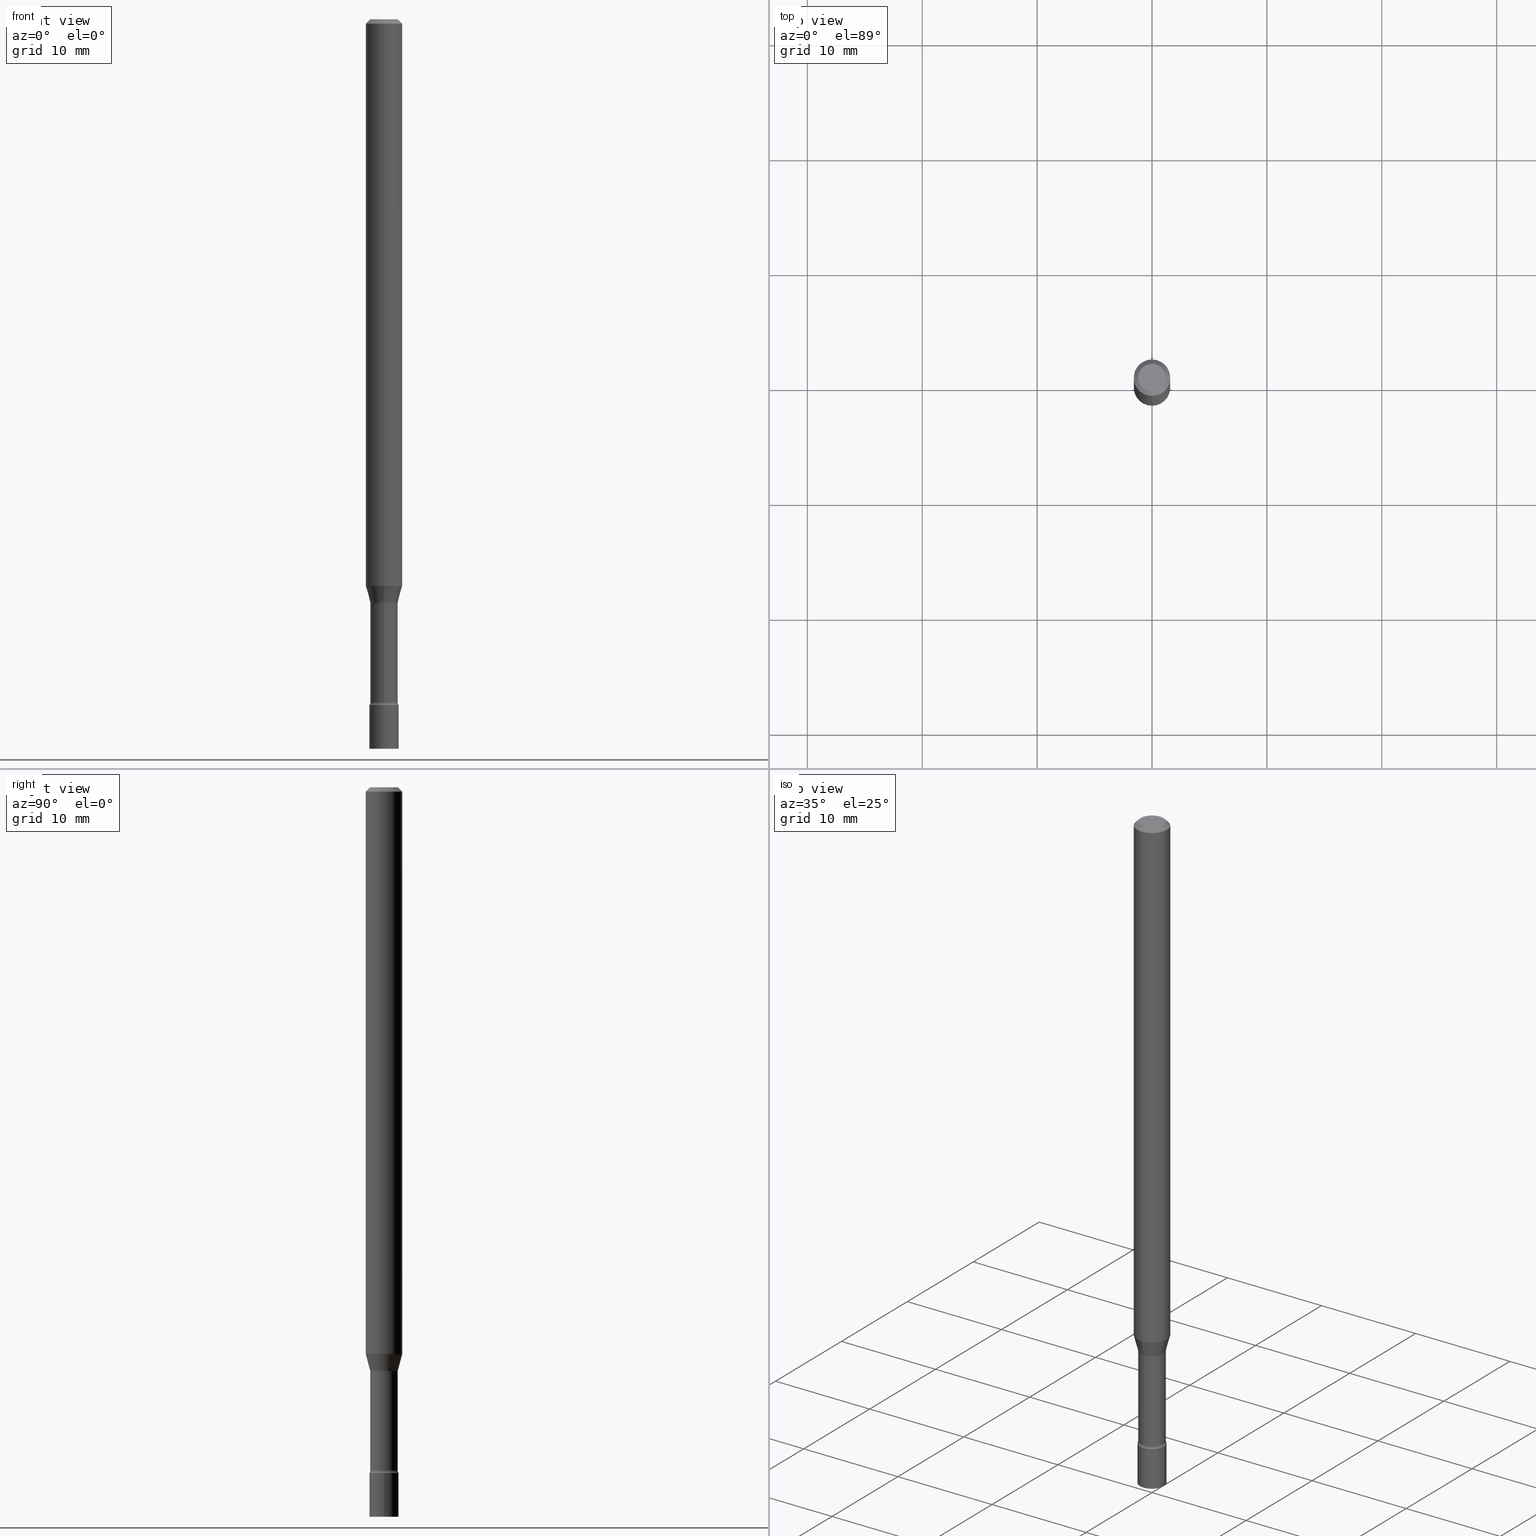
[diagram: canonical four-view strip — front | top / right | iso, engineering-drawing reading convention]
A machine part, canonical four-view strip (front | top / right | iso — engineering-drawing reading convention). The complete STEP part file that produces these views, byte-faithful:
ISO-10303-21;
HEADER;
FILE_DESCRIPTION (( 'STEP AP203' ),
    '1' );
FILE_NAME ('03558.STEP',
    '2024-03-08T21:48:51',
    ( '' ),
    ( '' ),
    'SwSTEP 2.0',
    'SolidWorks 2023',
    '' );
FILE_SCHEMA (( 'CONFIG_CONTROL_DESIGN' ));
ENDSEC;

DATA;
#1 = ORIENTED_EDGE ( 'NONE', *, *, #433, .F. ) ;
#2 = AXIS2_PLACEMENT_3D ( 'NONE', #275, #320, #165 ) ;
#3 = CIRCLE ( 'NONE', #193, 0.04700000000000000705 ) ;
#4 = VERTEX_POINT ( 'NONE', #35 ) ;
#5 = PERSON_AND_ORGANIZATION_ROLE ( 'classification_officer' ) ;
#6 = FACE_OUTER_BOUND ( 'NONE', #45, .T. ) ;
#7 = ORIENTED_EDGE ( 'NONE', *, *, #103, .T. ) ;
#8 = ORIENTED_EDGE ( 'NONE', *, *, #450, .T. ) ;
#9 = CALENDAR_DATE ( 2024, 8, 3 ) ;
#10 = LINE ( 'NONE', #492, #140 ) ;
#11 = EDGE_CURVE ( 'NONE', #172, #405, #64, .T. ) ;
#12 = EDGE_LOOP ( 'NONE', ( #369, #102, #20, #221 ) ) ;
#13 = ORIENTED_EDGE ( 'NONE', *, *, #80, .F. ) ;
#14 = DIRECTION ( 'NONE',  ( 0.000000000000000000, 0.000000000000000000, 1.000000000000000000 ) ) ;
#15 = AXIS2_PLACEMENT_3D ( 'NONE', #148, #146, #352 ) ;
#16 = DIRECTION ( 'NONE',  ( -2.445450007848855714E-29, 3.491508259130634782E-15, 1.000000000000000000 ) ) ;
#17 = DATE_TIME_ROLE ( 'classification_date' ) ;
#18 = DIRECTION ( 'NONE',  ( -2.445450007848855434E-29, 3.491508259130634782E-15, 1.000000000000000000 ) ) ;
#19 = FACE_OUTER_BOUND ( 'NONE', #88, .T. ) ;
#20 = ORIENTED_EDGE ( 'NONE', *, *, #195, .F. ) ;
#21 = DIRECTION ( 'NONE',  ( -6.982962677686266711E-15, -1.000000000000000000, 3.491508259130634782E-15 ) ) ;
#22 = CARTESIAN_POINT ( 'NONE',  ( 0.000000000000000000, 0.000000000000000000, 0.000000000000000000 ) ) ;
#23 = AXIS2_PLACEMENT_3D ( 'NONE', #496, #286, #410 ) ;
#24 = CIRCLE ( 'NONE', #418, 0.01500000000000002720 ) ;
#25 = CARTESIAN_POINT ( 'NONE',  ( 4.895729259716587129E-29, -6.989911505001192506E-15, -2.001974787463811190 ) ) ;
#26 = EDGE_LOOP ( 'NONE', ( #116, #189, #85, #476 ) ) ;
#27 = FACE_OUTER_BOUND ( 'NONE', #12, .T. ) ;
#28 = VERTEX_POINT ( 'NONE', #511 ) ;
#29 = DIRECTION ( 'NONE',  ( -2.445450007848855714E-29, 3.491508259130634782E-15, 1.000000000000000000 ) ) ;
#30 = AXIS2_PLACEMENT_3D ( 'NONE', #384, #178, #429 ) ;
#31 = AXIS2_PLACEMENT_3D ( 'NONE', #437, #360, #316 ) ;
#32 = DIRECTION ( 'NONE',  ( -2.445450007848855714E-29, 3.491508259130634782E-15, 1.000000000000000000 ) ) ;
#33 = DIRECTION ( 'NONE',  ( -6.982962677686263555E-15, -1.000000000000000000, 0.000000000000000000 ) ) ;
#34 = DIRECTION ( 'NONE',  ( -6.982962677686267499E-15, -1.000000000000000000, 5.812442539711189911E-15 ) ) ;
#35 = CARTESIAN_POINT ( 'NONE',  ( -3.773273898774340269E-16, -0.04749999999999999362, 1.369340100944918608E-16 ) ) ;
#36 = ORIENTED_EDGE ( 'NONE', *, *, #331, .T. ) ;
#37 = CARTESIAN_POINT ( 'NONE',  ( -3.281992458512547997E-16, -0.04700000000000003481, 1.641008881791399746E-16 ) ) ;
#38 = CARTESIAN_POINT ( 'NONE',  ( 4.440892098500625669E-16, 0.06250000000000000000, -2.182192661956646492E-16 ) ) ;
#39 = PLANE ( 'NONE',  #15 ) ;
#40 = VERTEX_POINT ( 'NONE', #272 ) ;
#41 = EDGE_CURVE ( 'NONE', #428, #398, #442, .T. ) ;
#42 = ORIENTED_EDGE ( 'NONE', *, *, #351, .F. ) ;
#43 = CALENDAR_DATE ( 2024, 8, 3 ) ;
#44 = EDGE_LOOP ( 'NONE', ( #467, #381, #84, #68 ) ) ;
#45 = EDGE_LOOP ( 'NONE', ( #318, #348, #120, #413 ) ) ;
#46 = CLOSED_SHELL ( 'NONE', ( #58, #393, #198, #119 ) ) ;
#47 = APPROVAL_PERSON_ORGANIZATION ( #371, #159, #374 ) ;
#48 = DATE_TIME_ROLE ( 'creation_date' ) ;
#49 = CARTESIAN_POINT ( 'NONE',  ( 3.316907271900976096E-16, 0.04749999999999999362, -1.803029584158117741E-16 ) ) ;
#50 = CARTESIAN_POINT ( 'NONE',  ( 0.000000000000000000, 0.000000000000000000, 0.000000000000000000 ) ) ;
#51 = CARTESIAN_POINT ( 'NONE',  ( 5.746851694535070554E-29, -8.204981146281391784E-15, -2.350000000000000089 ) ) ;
#52 = APPROVAL_STATUS ( 'not_yet_approved' ) ;
#53 = DIRECTION ( 'NONE',  ( -1.000000000000000000, 6.982962677686265922E-15, -4.883557194083112340E-29 ) ) ;
#54 = APPROVAL_DATE_TIME ( #323, #89 ) ;
#55 = AXIS2_PLACEMENT_3D ( 'NONE', #480, #105, #34 ) ;
#56 = CC_DESIGN_PERSON_AND_ORGANIZATION_ASSIGNMENT ( #205, #5, ( #516 ) ) ;
#57 = CARTESIAN_POINT ( 'NONE',  ( 3.668175011773291051E-31, -5.237262388695962379E-17, -0.01500000000000003067 ) ) ;
#58 = ADVANCED_FACE ( 'NONE', ( #520 ), #347, .T. ) ;
#59 = CARTESIAN_POINT ( 'NONE',  ( -4.287811248607203282E-16, -0.06250000000000005551, -0.01499999999999981209 ) ) ;
#60 = DIRECTION ( 'NONE',  ( 7.105427357601001859E-15, 1.000000000000000000, 0.000000000000000000 ) ) ;
#61 = FACE_OUTER_BOUND ( 'NONE', #373, .T. ) ;
#62 = VERTEX_POINT ( 'NONE', #368 ) ;
#63 = CARTESIAN_POINT ( 'NONE',  ( 5.746851694535070554E-29, -8.204981146281391784E-15, -2.350000000000000089 ) ) ;
#64 = CIRCLE ( 'NONE', #217, 0.01499999999999995087 ) ;
#65 = APPROVAL_PERSON_ORGANIZATION ( #117, #298, #131 ) ;
#66 = ORIENTED_EDGE ( 'NONE', *, *, #171, .T. ) ;
#67 = DIRECTION ( 'NONE',  ( -2.445450007848855714E-29, 3.491508259130634782E-15, 1.000000000000000000 ) ) ;
#68 = ORIENTED_EDGE ( 'NONE', *, *, #380, .F. ) ;
#69 = CARTESIAN_POINT ( 'NONE',  ( -4.364351673553912750E-16, -0.06250000000000005551, -0.01499999999999981209 ) ) ;
#70 = FACE_OUTER_BOUND ( 'NONE', #273, .T. ) ;
#71 = CIRCLE ( 'NONE', #473, 0.04749999999999999362 ) ;
#72 = CC_DESIGN_APPROVAL ( #159, ( #455 ) ) ;
#73 = CARTESIAN_POINT ( 'NONE',  ( -4.329436860164995557E-16, -0.06200000000000700090, -2.001974787463810745 ) ) ;
#74 = FACE_OUTER_BOUND ( 'NONE', #228, .T. ) ;
#75 = CARTESIAN_POINT ( 'NONE',  ( 6.113672015462842613E-29, -8.728703347107864943E-15, -2.500000000000000000 ) ) ;
#76 = CIRCLE ( 'NONE', #376, 0.06250000000000000000 ) ;
#77 = CARTESIAN_POINT ( 'NONE',  ( 3.375867592983955622E-16, 0.04751111260565701877, -1.998092501787273267 ) ) ;
#78 =( LENGTH_UNIT ( ) NAMED_UNIT ( * ) SI_UNIT ( $, .METRE. ) );
#79 = DIRECTION ( 'NONE',  ( -4.851104656540964275E-15, -0.7071067811865500152, -0.7071067811865450192 ) ) ;
#80 = EDGE_CURVE ( 'NONE', #28, #441, #464, .T. ) ;
#81 = CONICAL_SURFACE ( 'NONE', #134, 0.06250000000000000000, 0.7853981633974483900 ) ;
#82 = APPROVAL_ROLE ( '' ) ;
#83 = DIRECTION ( 'NONE',  ( -2.445450007848855714E-29, 3.491508259130634782E-15, 1.000000000000000000 ) ) ;
#84 = ORIENTED_EDGE ( 'NONE', *, *, #484, .T. ) ;
#85 = ORIENTED_EDGE ( 'NONE', *, *, #417, .F. ) ;
#86 = CARTESIAN_POINT ( 'NONE',  ( 3.668175011773291051E-31, -5.237262388695962379E-17, -0.01500000000000003067 ) ) ;
#87 = ORIENTED_EDGE ( 'NONE', *, *, #190, .T. ) ;
#88 = EDGE_LOOP ( 'NONE', ( #132, #182, #7, #139 ) ) ;
#89 = APPROVAL ( #52, 'UNSPECIFIED' ) ;
#90 = APPROVAL_STATUS ( 'not_yet_approved' ) ;
#91 = DIRECTION ( 'NONE',  ( 2.438088387897960049E-29, -3.491481338843145188E-15, -1.000000000000000000 ) ) ;
#92 =( NAMED_UNIT ( * ) SI_UNIT ( $, .STERADIAN. ) SOLID_ANGLE_UNIT ( ) );
#93 = CIRCLE ( 'NONE', #55, 0.04700000000000006950 ) ;
#94 = CARTESIAN_POINT ( 'NONE',  ( 7.070439667517895533E-46, -1.009486941691321215E-31, -2.891263221421328169E-17 ) ) ;
#95 = DIRECTION ( 'NONE',  ( -6.982962677686265922E-15, -1.000000000000000000, 3.491508259130634388E-15 ) ) ;
#96 = CARTESIAN_POINT ( 'NONE',  ( 0.000000000000000000, 0.000000000000000000, 0.000000000000000000 ) ) ;
#97 = ORIENTED_EDGE ( 'NONE', *, *, #433, .T. ) ;
#98 = DIRECTION ( 'NONE',  ( -2.445450007848855714E-29, 3.491508259130634782E-15, 1.000000000000000000 ) ) ;
#99 = AXIS2_PLACEMENT_3D ( 'NONE', #297, #67, #215 ) ;
#100 = ORIENTED_EDGE ( 'NONE', *, *, #11, .F. ) ;
#101 = DIRECTION ( 'NONE',  ( 1.000000000000000000, -7.105427357601001070E-15, 4.926315838220521191E-29 ) ) ;
#102 = ORIENTED_EDGE ( 'NONE', *, *, #41, .T. ) ;
#103 = EDGE_CURVE ( 'NONE', #40, #497, #10, .T. ) ;
#104 = DIRECTION ( 'NONE',  ( -6.982962677686265922E-15, -1.000000000000000000, 3.491508259130634782E-15 ) ) ;
#105 = DIRECTION ( 'NONE',  ( -2.445450007848855714E-29, 3.491508259130634782E-15, 1.000000000000000000 ) ) ;
#106 = AXIS2_PLACEMENT_3D ( 'NONE', #122, #91, #375 ) ;
#107 = PRODUCT_DEFINITION_FORMATION_WITH_SPECIFIED_SOURCE ( 'ANY', '', #421, .NOT_KNOWN. ) ;
#108 = CARTESIAN_POINT ( 'NONE',  ( 3.339550858072472854E-16, 0.04700000000000003481, -1.641008881791399746E-16 ) ) ;
#109 = LINE ( 'NONE', #108, #500 ) ;
#110 = ORIENTED_EDGE ( 'NONE', *, *, #267, .F. ) ;
#111 = DIRECTION ( 'NONE',  ( 1.839019923739596765E-15, 0.2588190451025244587, 0.9659258262890673130 ) ) ;
#112 = CIRCLE ( 'NONE', #481, 0.04751111260566399236 ) ;
#113 = ORIENTED_EDGE ( 'NONE', *, *, #450, .F. ) ;
#114 = CIRCLE ( 'NONE', #448, 0.04700000000000000705 ) ;
#115 = DIRECTION ( 'NONE',  ( 1.000000000000000000, -7.105427357601001070E-15, 4.926315838220521191E-29 ) ) ;
#116 = ORIENTED_EDGE ( 'NONE', *, *, #404, .T. ) ;
#117 = PERSON_AND_ORGANIZATION ( #424, #204 ) ;
#118 = DIRECTION ( 'NONE',  ( 2.445450007848855714E-29, -3.491508259130634782E-15, -1.000000000000000000 ) ) ;
#119 = ADVANCED_FACE ( 'NONE', ( #454 ), #282, .T. ) ;
#120 = ORIENTED_EDGE ( 'NONE', *, *, #390, .T. ) ;
#121 = ORIENTED_EDGE ( 'NONE', *, *, #338, .T. ) ;
#122 = CARTESIAN_POINT ( 'NONE',  ( 3.491481338843744722E-16, 0.04999999999999128059, -2.500000000000000000 ) ) ;
#123 = AXIS2_PLACEMENT_3D ( 'NONE', #460, #170, #468 ) ;
#124 = CC_DESIGN_SECURITY_CLASSIFICATION ( #516, ( #107 ) ) ;
#125 = PERSON_AND_ORGANIZATION_ROLE ( 'creator' ) ;
#126 = LINE ( 'NONE', #59, #279 ) ;
#127 = ORIENTED_EDGE ( 'NONE', *, *, #459, .F. ) ;
#128 = ORIENTED_EDGE ( 'NONE', *, *, #171, .F. ) ;
#129 = COORDINATED_UNIVERSAL_TIME_OFFSET ( 5, 0, .BEHIND. ) ;
#130 = DIRECTION ( 'NONE',  ( -2.445468806185136597E-29, 3.491481338843145583E-15, 1.000000000000000000 ) ) ;
#131 = APPROVAL_ROLE ( '' ) ;
#132 = ORIENTED_EDGE ( 'NONE', *, *, #180, .F. ) ;
#133 = DIRECTION ( 'NONE',  ( -2.445468806185136597E-29, 3.491481338843145583E-15, 1.000000000000000000 ) ) ;
#134 = AXIS2_PLACEMENT_3D ( 'NONE', #86, #118, #244 ) ;
#135 = VECTOR ( 'NONE', #458, 39.37007874015748854 ) ;
#136 = FACE_OUTER_BOUND ( 'NONE', #326, .T. ) ;
#137 = CARTESIAN_POINT ( 'NONE',  ( 5.724842475279405733E-29, -8.173557814231804720E-15, -2.341000000000000192 ) ) ;
#138 = DIRECTION ( 'NONE',  ( 7.105427357600997914E-15, 1.000000000000000000, 0.000000000000000000 ) ) ;
#139 = ORIENTED_EDGE ( 'NONE', *, *, #223, .F. ) ;
#140 = VECTOR ( 'NONE', #415, 39.37007874015748143 ) ;
#141 = DIRECTION ( 'NONE',  ( -6.982962677686266711E-15, -1.000000000000000000, 3.491508259130634782E-15 ) ) ;
#142 = VECTOR ( 'NONE', #151, 39.37007874015748143 ) ;
#143 = ADVANCED_FACE ( 'NONE', ( #199 ), #385, .T. ) ;
#144 = LINE ( 'NONE', #420, #135 ) ;
#145 = CARTESIAN_POINT ( 'NONE',  ( 5.746851694535070554E-29, -8.204981146281391784E-15, -2.350000000000000089 ) ) ;
#146 = DIRECTION ( 'NONE',  ( -2.445450007848855434E-29, 3.491508259130634782E-15, 1.000000000000000000 ) ) ;
#147 = AXIS2_PLACEMENT_3D ( 'NONE', #137, #253, #387 ) ;
#148 = CARTESIAN_POINT ( 'NONE',  ( 3.491481338843707252E-16, 0.04999999999999180100, -2.350000000000000533 ) ) ;
#149 = MANIFOLD_SOLID_BREP ( 'Body-Move/Copy2[1]', #46 ) ;
#150 = DIRECTION ( 'NONE',  ( -2.445450007848855434E-29, 3.491508259130634782E-15, 1.000000000000000000 ) ) ;
#151 = DIRECTION ( 'NONE',  ( 4.937700262164548042E-15, 0.7071067811865451302, -0.7071067811865499042 ) ) ;
#152 = AXIS2_PLACEMENT_3D ( 'NONE', #344, #470, #104 ) ;
#153 = CONICAL_SURFACE ( 'NONE', #249, 0.04751111260566399236, 0.2617993877991497409 ) ;
#154 = ADVANCED_FACE ( 'NONE', ( #250 ), #166, .F. ) ;
#155 = PERSON_AND_ORGANIZATION ( #424, #204 ) ;
#156 = CALENDAR_DATE ( 2024, 8, 3 ) ;
#157 = CYLINDRICAL_SURFACE ( 'NONE', #362, 0.06250000000000000000 ) ;
#158 = DATE_AND_TIME ( #485, #212 ) ;
#159 = APPROVAL ( #90, 'UNSPECIFIED' ) ;
#160 = DIRECTION ( 'NONE',  ( 6.982962677686265922E-15, 1.000000000000000000, -3.483106191921935554E-15 ) ) ;
#161 = AXIS2_PLACEMENT_3D ( 'NONE', #276, #83, #444 ) ;
#162 = CIRCLE ( 'NONE', #435, 0.05000000000000000278 ) ;
#163 = LENGTH_MEASURE_WITH_UNIT ( LENGTH_MEASURE( 0.02539999999999999897 ), #78 );
#164 = DIRECTION ( 'NONE',  ( -2.445468806185136877E-29, 3.491481338843145188E-15, 1.000000000000000000 ) ) ;
#165 = DIRECTION ( 'NONE',  ( 1.000000000000000000, -6.982962677686267499E-15, 4.876176775795936353E-29 ) ) ;
#166 = PLANE ( 'NONE',  #425 ) ;
#167 = AXIS2_PLACEMENT_3D ( 'NONE', #181, #264, #260 ) ;
#168 = ADVANCED_FACE ( 'NONE', ( #452 ), #81, .T. ) ;
#169 = CARTESIAN_POINT ( 'NONE',  ( 4.886235324178426832E-29, -6.976356472497257003E-15, -1.998092501787273045 ) ) ;
#170 = DIRECTION ( 'NONE',  ( -2.445450007848855714E-29, 3.491508259130634782E-15, 1.000000000000000000 ) ) ;
#171 = EDGE_CURVE ( 'NONE', #441, #405, #292, .T. ) ;
#172 = VERTEX_POINT ( 'NONE', #196 ) ;
#173 = ORIENTED_EDGE ( 'NONE', *, *, #180, .T. ) ;
#174 = CARTESIAN_POINT ( 'NONE',  ( 3.908379845742528783E-16, 0.04751111260565701877, -1.998092501787273267 ) ) ;
#175 = ADVANCED_FACE ( 'NONE', ( #6 ), #157, .T. ) ;
#176 = EDGE_LOOP ( 'NONE', ( #300, #127 ) ) ;
#177 = AXIS2_PLACEMENT_3D ( 'NONE', #57, #278, #160 ) ;
#178 = DIRECTION ( 'NONE',  ( -2.445450007848855714E-29, 3.491508259130634782E-15, 1.000000000000000000 ) ) ;
#179 = AXIS2_PLACEMENT_3D ( 'NONE', #75, #357, #483 ) ;
#180 = EDGE_CURVE ( 'NONE', #287, #364, #412, .T. ) ;
#181 = CARTESIAN_POINT ( 'NONE',  ( 5.724842475279405733E-29, -8.173557814231804720E-15, -2.341000000000000192 ) ) ;
#182 = ORIENTED_EDGE ( 'NONE', *, *, #459, .T. ) ;
#183 = CARTESIAN_POINT ( 'NONE',  ( 6.113672015462842613E-29, -8.728703347107864943E-15, -2.500000000000000000 ) ) ;
#184 = DESIGN_CONTEXT ( 'detailed design', #263, 'design' ) ;
#185 = CARTESIAN_POINT ( 'NONE',  ( 4.440892098501102436E-16, 0.06249999999999325540, -1.942153212482682800 ) ) ;
#186 = CIRCLE ( 'NONE', #270, 0.04700000000000006950 ) ;
#187 = LINE ( 'NONE', #519, #142 ) ;
#188 = DIRECTION ( 'NONE',  ( -2.445450007848855434E-29, 3.491508259130634782E-15, 1.000000000000000000 ) ) ;
#189 = ORIENTED_EDGE ( 'NONE', *, *, #509, .T. ) ;
#190 = EDGE_CURVE ( 'NONE', #214, #4, #71, .T. ) ;
#191 = APPROVAL_STATUS ( 'not_yet_approved' ) ;
#192 = CIRCLE ( 'NONE', #123, 0.04751111260566399236 ) ;
#193 = AXIS2_PLACEMENT_3D ( 'NONE', #268, #314, #512 ) ;
#194 = ORIENTED_EDGE ( 'NONE', *, *, #80, .T. ) ;
#195 = EDGE_CURVE ( 'NONE', #254, #398, #211, .T. ) ;
#196 = CARTESIAN_POINT ( 'NONE',  ( 3.446132268437060393E-16, 0.04699999999999190242, -2.341000000000000636 ) ) ;
#197 = PRODUCT_RELATED_PRODUCT_CATEGORY ( 'detail', '', ( #421 ) ) ;
#198 = ADVANCED_FACE ( 'NONE', ( #19 ), #330, .T. ) ;
#199 = FACE_OUTER_BOUND ( 'NONE', #426, .T. ) ;
#200 = CALENDAR_DATE ( 2024, 8, 3 ) ;
#201 = CARTESIAN_POINT ( 'NONE',  ( -0.05000000000000000278, 3.552713678800501127E-16, -2.459467545127453311E-30 ) ) ;
#202 = EDGE_LOOP ( 'NONE', ( #121, #97, #296, #42 ) ) ;
#203 = CIRCLE ( 'NONE', #506, 0.04749999999999999362 ) ;
#204 = ORGANIZATION ( 'UNSPECIFIED', 'UNSPECIFIED', '' ) ;
#205 = PERSON_AND_ORGANIZATION ( #424, #204 ) ;
#206 = DIRECTION ( 'NONE',  ( 6.982962677686265922E-15, 1.000000000000000000, -3.491508259130634782E-15 ) ) ;
#207 = CC_DESIGN_PERSON_AND_ORGANIZATION_ASSIGNMENT ( #235, #246, ( #421 ) ) ;
#208 = DIRECTION ( 'NONE',  ( -6.982962677686265133E-15, -1.000000000000000000, 5.463695987328526437E-15 ) ) ;
#209 = EDGE_CURVE ( 'NONE', #405, #441, #514, .T. ) ;
#210 = DIRECTION ( 'NONE',  ( -6.982962677686265922E-15, -1.000000000000000000, 3.483106191921935554E-15 ) ) ;
#211 = CIRCLE ( 'NONE', #161, 0.06250000000000000000 ) ;
#212 = LOCAL_TIME ( 16, 48, 51.00000000000000000, #406 ) ;
#213 = CARTESIAN_POINT ( 'NONE',  ( -0.05000000000000000278, -8.111570878814577955E-15, -2.500000000000000000 ) ) ;
#214 = VERTEX_POINT ( 'NONE', #241 ) ;
#215 = DIRECTION ( 'NONE',  ( -6.982962677686267499E-15, -1.000000000000000000, 3.491508259130635176E-15 ) ) ;
#216 = DIRECTION ( 'NONE',  ( -2.445450007848855714E-29, 3.491508259130634782E-15, 1.000000000000000000 ) ) ;
#217 = AXIS2_PLACEMENT_3D ( 'NONE', #321, #115, #60 ) ;
#218 = AXIS2_PLACEMENT_3D ( 'NONE', #50, #14, #329 ) ;
#219 = FACE_OUTER_BOUND ( 'NONE', #359, .T. ) ;
#220 = CARTESIAN_POINT ( 'NONE',  ( 4.440892098501103423E-16, 0.06249999999999993755, -0.01500000000000024751 ) ) ;
#221 = ORIENTED_EDGE ( 'NONE', *, *, #390, .F. ) ;
#222 = EDGE_LOOP ( 'NONE', ( #358, #388, #8, #315 ) ) ;
#223 = EDGE_CURVE ( 'NONE', #364, #497, #434, .T. ) ;
#224 = DIRECTION ( 'NONE',  ( 1.000000000000000000, -6.982962677686265922E-15, 4.876176775795935793E-29 ) ) ;
#225 = VECTOR ( 'NONE', #164, 39.37007874015748143 ) ;
#226 = AXIS2_PLACEMENT_3D ( 'NONE', #299, #342, #501 ) ;
#227 = ORIENTED_EDGE ( 'NONE', *, *, #513, .F. ) ;
#228 = EDGE_LOOP ( 'NONE', ( #100, #377, #194, #66 ) ) ;
#229 = VERTEX_POINT ( 'NONE', #291 ) ;
#230 = CC_DESIGN_PERSON_AND_ORGANIZATION_ASSIGNMENT ( #155, #125, ( #107 ) ) ;
#231 = DIRECTION ( 'NONE',  ( -2.438088387897960049E-29, 3.491481338843145188E-15, 1.000000000000000000 ) ) ;
#232 = EDGE_CURVE ( 'NONE', #4, #254, #126, .T. ) ;
#233 = ORIENTED_EDGE ( 'NONE', *, *, #351, .T. ) ;
#234 = LINE ( 'NONE', #37, #457 ) ;
#235 = PERSON_AND_ORGANIZATION ( #424, #204 ) ;
#236 = DIRECTION ( 'NONE',  ( 1.000000000000000000, -6.982962677686274599E-15, 0.000000000000000000 ) ) ;
#237 = AXIS2_PLACEMENT_3D ( 'NONE', #335, #130, #494 ) ;
#238 = LOCAL_TIME ( 16, 48, 51.00000000000000000, #414 ) ;
#239 = EDGE_CURVE ( 'NONE', #428, #62, #255, .T. ) ;
#240 =( NAMED_UNIT ( * ) PLANE_ANGLE_UNIT ( ) SI_UNIT ( $, .RADIAN. ) );
#241 = CARTESIAN_POINT ( 'NONE',  ( 3.840629472727447874E-16, 0.04749999999999999362, -1.947592745229184119E-16 ) ) ;
#242 = ORIENTED_EDGE ( 'NONE', *, *, #295, .T. ) ;
#243 = APPROVAL_DATE_TIME ( #158, #159 ) ;
#244 = DIRECTION ( 'NONE',  ( 6.982962677686265922E-15, 1.000000000000000000, -3.483106191921935554E-15 ) ) ;
#245 = ORIENTED_EDGE ( 'NONE', *, *, #341, .T. ) ;
#246 = PERSON_AND_ORGANIZATION_ROLE ( 'design_owner' ) ;
#247 = DIRECTION ( 'NONE',  ( -6.982962677686266711E-15, -1.000000000000000000, 0.000000000000000000 ) ) ;
#248 = VECTOR ( 'NONE', #18, 39.37007874015748143 ) ;
#249 = AXIS2_PLACEMENT_3D ( 'NONE', #401, #308, #311 ) ;
#250 = FACE_OUTER_BOUND ( 'NONE', #515, .T. ) ;
#251 = DIRECTION ( 'NONE',  ( -2.445450007848855714E-29, 3.491508259130634782E-15, 1.000000000000000000 ) ) ;
#252 = ORIENTED_EDGE ( 'NONE', *, *, #262, .T. ) ;
#253 = DIRECTION ( 'NONE',  ( -2.445450007848855714E-29, 3.491508259130634782E-15, 1.000000000000000000 ) ) ;
#254 = VERTEX_POINT ( 'NONE', #69 ) ;
#255 = CIRCLE ( 'NONE', #353, 0.06250000000000000000 ) ;
#256 = DIRECTION ( 'NONE',  ( -6.982962677686265922E-15, -1.000000000000000000, 5.812442539711197800E-15 ) ) ;
#257 = ORIENTED_EDGE ( 'NONE', *, *, #295, .F. ) ;
#258 = CARTESIAN_POINT ( 'NONE',  ( 3.668175011773291051E-31, -5.237262388695962379E-17, -0.01500000000000003067 ) ) ;
#259 = CLOSED_SHELL ( 'NONE', ( #283, #284, #367, #168, #332, #478, #356, #175, #143, #154, #469, #430, #289, #402 ) ) ;
#260 = DIRECTION ( 'NONE',  ( -6.982962677686265922E-15, -1.000000000000000000, 3.491508259130634782E-15 ) ) ;
#261 = CIRCLE ( 'NONE', #179, 0.05000000000000000278 ) ;
#262 = EDGE_CURVE ( 'NONE', #302, #229, #192, .T. ) ;
#263 = APPLICATION_CONTEXT ( 'configuration controlled 3d designs of mechanical parts and assemblies' ) ;
#264 = DIRECTION ( 'NONE',  ( -2.445450007848855714E-29, 3.491508259130634782E-15, 1.000000000000000000 ) ) ;
#265 = LINE ( 'NONE', #440, #482 ) ;
#266 = CC_DESIGN_DATE_AND_TIME_ASSIGNMENT ( #493, #48, ( #455 ) ) ;
#267 = EDGE_CURVE ( 'NONE', #172, #28, #186, .T. ) ;
#268 = CARTESIAN_POINT ( 'NONE',  ( 4.895729259716587129E-29, -6.989911505001192506E-15, -2.001974787463811190 ) ) ;
#269 = EDGE_CURVE ( 'NONE', #62, #428, #327, .T. ) ;
#270 = AXIS2_PLACEMENT_3D ( 'NONE', #303, #216, #423 ) ;
#271 = TOROIDAL_SURFACE ( 'NONE', #147, 0.06200000000000003425, 0.01499999999999995608 ) ;
#272 = CARTESIAN_POINT ( 'NONE',  ( 0.05000000000000000278, -9.077851480992178278E-15, -2.500000000000000000 ) ) ;
#273 = EDGE_LOOP ( 'NONE', ( #110, #313, #312, #13 ) ) ;
#274 = VERTEX_POINT ( 'NONE', #395 ) ;
#275 = CARTESIAN_POINT ( 'NONE',  ( 0.000000000000000000, 0.000000000000000000, 0.000000000000000000 ) ) ;
#276 = CARTESIAN_POINT ( 'NONE',  ( 3.668175011773291051E-31, -5.237262388695962379E-17, -0.01500000000000003067 ) ) ;
#277 = APPLICATION_PROTOCOL_DEFINITION ( 'international standard', 'config_control_design', 1994, #471 ) ;
#278 = DIRECTION ( 'NONE',  ( 2.445450007848855714E-29, -3.491508259130634782E-15, -1.000000000000000000 ) ) ;
#279 = VECTOR ( 'NONE', #79, 39.37007874015748143 ) ;
#280 = LOCAL_TIME ( 16, 48, 51.00000000000000000, #378 ) ;
#281 = SECURITY_CLASSIFICATION_LEVEL ( 'unclassified' ) ;
#282 = PLANE ( 'NONE',  #106 ) ;
#283 = ADVANCED_FACE ( 'NONE', ( #136 ), #317, .F. ) ;
#284 = ADVANCED_FACE ( 'NONE', ( #427 ), #392, .T. ) ;
#285 = PERSON_AND_ORGANIZATION ( #424, #204 ) ;
#286 = DIRECTION ( 'NONE',  ( -2.445450007848855714E-29, 3.491508259130634782E-15, 1.000000000000000000 ) ) ;
#287 = VERTEX_POINT ( 'NONE', #213 ) ;
#288 = PRODUCT_DEFINITION_SHAPE ( 'NONE', 'NONE',  #455 ) ;
#289 = ADVANCED_FACE ( 'NONE', ( #498 ), #389, .T. ) ;
#290 = PERSON_AND_ORGANIZATION ( #424, #204 ) ;
#291 = CARTESIAN_POINT ( 'NONE',  ( -3.317683261006522330E-16, -0.04751111260567096595, -1.998092501787272823 ) ) ;
#292 = CIRCLE ( 'NONE', #407, 0.05000000000000000278 ) ;
#293 = VECTOR ( 'NONE', #111, 39.37007874015748143 ) ;
#294 = DIRECTION ( 'NONE',  ( -2.445468806185136597E-29, 3.491481338843145583E-15, 1.000000000000000000 ) ) ;
#295 = EDGE_CURVE ( 'NONE', #497, #364, #301, .T. ) ;
#296 = ORIENTED_EDGE ( 'NONE', *, *, #269, .F. ) ;
#297 = CARTESIAN_POINT ( 'NONE',  ( 0.000000000000000000, 0.000000000000000000, 0.000000000000000000 ) ) ;
#298 = APPROVAL ( #191, 'UNSPECIFIED' ) ;
#299 = CARTESIAN_POINT ( 'NONE',  ( 4.886235324178426832E-29, -6.976356472497257003E-15, -1.998092501787273045 ) ) ;
#300 = ORIENTED_EDGE ( 'NONE', *, *, #453, .F. ) ;
#301 = CIRCLE ( 'NONE', #439, 0.05000000000000000278 ) ;
#302 = VERTEX_POINT ( 'NONE', #174 ) ;
#303 = CARTESIAN_POINT ( 'NONE',  ( 5.724798468374171702E-29, -8.173620834624816498E-15, -2.341000000000000192 ) ) ;
#304 = ORIENTED_EDGE ( 'NONE', *, *, #453, .T. ) ;
#305 = DIRECTION ( 'NONE',  ( 1.000000000000000000, -6.982962677686274599E-15, 0.000000000000000000 ) ) ;
#306 = ORIENTED_EDGE ( 'NONE', *, *, #325, .T. ) ;
#307 = FACE_OUTER_BOUND ( 'NONE', #222, .T. ) ;
#308 = DIRECTION ( 'NONE',  ( -2.445450007848855714E-29, 3.491508259130634782E-15, 1.000000000000000000 ) ) ;
#309 = AXIS2_PLACEMENT_3D ( 'NONE', #508, #101, #138 ) ;
#310 = ORIENTED_EDGE ( 'NONE', *, *, #209, .F. ) ;
#311 = DIRECTION ( 'NONE',  ( -6.982962677686265922E-15, -1.000000000000000000, 5.749913744050246675E-15 ) ) ;
#312 = ORIENTED_EDGE ( 'NONE', *, *, #209, .T. ) ;
#313 = ORIENTED_EDGE ( 'NONE', *, *, #11, .T. ) ;
#314 = DIRECTION ( 'NONE',  ( -2.445450007848855714E-29, 3.491508259130634782E-15, 1.000000000000000000 ) ) ;
#315 = ORIENTED_EDGE ( 'NONE', *, *, #417, .T. ) ;
#316 = DIRECTION ( 'NONE',  ( -6.982962677686265922E-15, -1.000000000000000000, 3.491508259130634782E-15 ) ) ;
#317 = TOROIDAL_SURFACE ( 'NONE', #152, 0.06200000000000000649, 0.01500000000000002373 ) ;
#318 = ORIENTED_EDGE ( 'NONE', *, *, #41, .F. ) ;
#319 = DATE_AND_TIME ( #156, #465 ) ;
#320 = DIRECTION ( 'NONE',  ( -2.445468806185136597E-29, 3.491481338843145583E-15, 1.000000000000000000 ) ) ;
#321 = CARTESIAN_POINT ( 'NONE',  ( 4.405364961713195510E-16, 0.06199999999999186023, -2.341000000000000636 ) ) ;
#322 = ADVANCED_BREP_SHAPE_REPRESENTATION ( '03558', ( #149, #337, #218 ), #386 ) ;
#323 = DATE_AND_TIME ( #200, #238 ) ;
#324 = CARTESIAN_POINT ( 'NONE',  ( -4.329436860164914206E-16, -0.06200000000000820133, -2.341000000000000192 ) ) ;
#325 = EDGE_CURVE ( 'NONE', #398, #254, #76, .T. ) ;
#326 = EDGE_LOOP ( 'NONE', ( #502, #245, #383, #113 ) ) ;
#327 = CIRCLE ( 'NONE', #30, 0.06250000000000000000 ) ;
#328 = CC_DESIGN_APPROVAL ( #298, ( #516 ) ) ;
#329 = DIRECTION ( 'NONE',  ( 1.000000000000000000, 0.000000000000000000, 0.000000000000000000 ) ) ;
#330 = CYLINDRICAL_SURFACE ( 'NONE', #237, 0.05000000000000000278 ) ;
#331 = EDGE_CURVE ( 'NONE', #4, #214, #203, .T. ) ;
#332 = ADVANCED_FACE ( 'NONE', ( #27 ), #346, .T. ) ;
#333 = PERSON_AND_ORGANIZATION_ROLE ( 'design_supplier' ) ;
#334 = ORIENTED_EDGE ( 'NONE', *, *, #190, .F. ) ;
#335 = CARTESIAN_POINT ( 'NONE',  ( 0.000000000000000000, 0.000000000000000000, 0.000000000000000000 ) ) ;
#336 = EDGE_LOOP ( 'NONE', ( #461, #422, #479, #227 ) ) ;
#337 = MANIFOLD_SOLID_BREP ( 'Body-Move/Copy2[2]', #259 ) ;
#338 = EDGE_CURVE ( 'NONE', #229, #302, #112, .T. ) ;
#339 = DIRECTION ( 'NONE',  ( -2.445450007848855714E-29, 3.491508259130634782E-15, 1.000000000000000000 ) ) ;
#340 = LOCAL_TIME ( 16, 48, 51.00000000000000000, #129 ) ;
#341 = EDGE_CURVE ( 'NONE', #302, #274, #408, .T. ) ;
#342 = DIRECTION ( 'NONE',  ( -2.445450007848855714E-29, 3.491508259130634782E-15, 1.000000000000000000 ) ) ;
#343 = ORIENTED_EDGE ( 'NONE', *, *, #513, .T. ) ;
#344 = CARTESIAN_POINT ( 'NONE',  ( 4.895766893511868006E-29, -6.989857611264368100E-15, -2.001974787463811190 ) ) ;
#345 = SHAPE_DEFINITION_REPRESENTATION ( #288, #322 ) ;
#346 = CYLINDRICAL_SURFACE ( 'NONE', #416, 0.06250000000000000000 ) ;
#347 = CYLINDRICAL_SURFACE ( 'NONE', #2, 0.05000000000000000278 ) ;
#348 = ORIENTED_EDGE ( 'NONE', *, *, #239, .T. ) ;
#349 = CONICAL_SURFACE ( 'NONE', #226, 0.04751111260566399236, 0.2617993877991497409 ) ;
#350 = CARTESIAN_POINT ( 'NONE',  ( 7.070439667517895533E-46, -1.009486941691321215E-31, -2.891263221421328169E-17 ) ) ;
#351 = EDGE_CURVE ( 'NONE', #229, #62, #144, .T. ) ;
#352 = DIRECTION ( 'NONE',  ( -6.982962677686265922E-15, -1.000000000000000000, 3.491508259130634782E-15 ) ) ;
#353 = AXIS2_PLACEMENT_3D ( 'NONE', #456, #409, #372 ) ;
#354 = CARTESIAN_POINT ( 'NONE',  ( 3.552713678801073051E-16, 0.04999999999999177325, -2.350000000000000533 ) ) ;
#355 = CC_DESIGN_APPROVAL ( #89, ( #107 ) ) ;
#356 = ADVANCED_FACE ( 'NONE', ( #61 ), #349, .T. ) ;
#357 = DIRECTION ( 'NONE',  ( -2.445468806185136597E-29, 3.491481338843145583E-15, 1.000000000000000000 ) ) ;
#358 = ORIENTED_EDGE ( 'NONE', *, *, #341, .F. ) ;
#359 = EDGE_LOOP ( 'NONE', ( #242, #431 ) ) ;
#360 = DIRECTION ( 'NONE',  ( -2.445450007848855714E-29, 3.491508259130634782E-15, 1.000000000000000000 ) ) ;
#361 = COORDINATED_UNIVERSAL_TIME_OFFSET ( 5, 0, .BEHIND. ) ;
#362 = AXIS2_PLACEMENT_3D ( 'NONE', #382, #16, #449 ) ;
#363 = TOROIDAL_SURFACE ( 'NONE', #167, 0.06200000000000003425, 0.01499999999999995608 ) ;
#364 = VERTEX_POINT ( 'NONE', #432 ) ;
#365 = DIMENSIONAL_EXPONENTS ( 1.000000000000000000, 0.000000000000000000, 0.000000000000000000, 0.000000000000000000, 0.000000000000000000, 0.000000000000000000, 0.000000000000000000 ) ;
#366 = DATE_AND_TIME ( #43, #280 ) ;
#367 = ADVANCED_FACE ( 'NONE', ( #70 ), #271, .F. ) ;
#368 = CARTESIAN_POINT ( 'NONE',  ( -4.364351673553439433E-16, -0.06250000000000675848, -1.942153212482682134 ) ) ;
#369 = ORIENTED_EDGE ( 'NONE', *, *, #269, .T. ) ;
#370 = EDGE_LOOP ( 'NONE', ( #304, #173, #257, #487 ) ) ;
#371 = PERSON_AND_ORGANIZATION ( #424, #204 ) ;
#372 = DIRECTION ( 'NONE',  ( -6.982962677686265922E-15, -1.000000000000000000, 4.370956789862821150E-15 ) ) ;
#373 = EDGE_LOOP ( 'NONE', ( #1, #252, #233, #504 ) ) ;
#374 = APPROVAL_ROLE ( '' ) ;
#375 = DIRECTION ( 'NONE',  ( -1.000000000000000000, 6.982962677686265922E-15, -4.876176775795935793E-29 ) ) ;
#376 = AXIS2_PLACEMENT_3D ( 'NONE', #258, #339, #210 ) ;
#377 = ORIENTED_EDGE ( 'NONE', *, *, #404, .F. ) ;
#378 = COORDINATED_UNIVERSAL_TIME_OFFSET ( 5, 0, .BEHIND. ) ;
#379 = CARTESIAN_POINT ( 'NONE',  ( 5.746807518444810803E-29, -8.205044408956991481E-15, -2.350000000000000089 ) ) ;
#380 = EDGE_CURVE ( 'NONE', #274, #445, #114, .T. ) ;
#381 = ORIENTED_EDGE ( 'NONE', *, *, #267, .T. ) ;
#382 = CARTESIAN_POINT ( 'NONE',  ( 0.000000000000000000, 0.000000000000000000, 0.000000000000000000 ) ) ;
#383 = ORIENTED_EDGE ( 'NONE', *, *, #380, .T. ) ;
#384 = CARTESIAN_POINT ( 'NONE',  ( 4.749438588709456115E-29, -6.781043981880380438E-15, -1.942153212482682578 ) ) ;
#385 = CONICAL_SURFACE ( 'NONE', #177, 0.06250000000000000000, 0.7853981633974483900 ) ;
#386 =( GEOMETRIC_REPRESENTATION_CONTEXT ( 3 ) GLOBAL_UNCERTAINTY_ASSIGNED_CONTEXT ( ( #518 ) ) GLOBAL_UNIT_ASSIGNED_CONTEXT ( ( #411, #240, #92 ) ) REPRESENTATION_CONTEXT ( 'NONE', 'WORKASPACE' ) );
#387 = DIRECTION ( 'NONE',  ( -6.982962677686265922E-15, -1.000000000000000000, 3.491508259130634782E-15 ) ) ;
#388 = ORIENTED_EDGE ( 'NONE', *, *, #338, .F. ) ;
#389 = CYLINDRICAL_SURFACE ( 'NONE', #499, 0.04700000000000003481 ) ;
#390 = EDGE_CURVE ( 'NONE', #62, #254, #265, .T. ) ;
#391 = EDGE_LOOP ( 'NONE', ( #128, #310 ) ) ;
#392 = CYLINDRICAL_SURFACE ( 'NONE', #99, 0.04700000000000003481 ) ;
#393 = ADVANCED_FACE ( 'NONE', ( #219 ), #438, .T. ) ;
#394 = AXIS2_PLACEMENT_3D ( 'NONE', #145, #231, #224 ) ;
#395 = CARTESIAN_POINT ( 'NONE',  ( 3.339550858073044285E-16, 0.04699999999999301264, -2.001974787463811190 ) ) ;
#396 = DIRECTION ( 'NONE',  ( -1.000000000000000000, 6.982962677686265922E-15, -4.883557194083112340E-29 ) ) ;
#397 = CC_DESIGN_DATE_AND_TIME_ASSIGNMENT ( #366, #17, ( #516 ) ) ;
#398 = VERTEX_POINT ( 'NONE', #220 ) ;
#399 = AXIS2_PLACEMENT_3D ( 'NONE', #324, #53, #247 ) ;
#400 = DIRECTION ( 'NONE',  ( 1.000000000000000000, -6.982962677686274599E-15, 0.000000000000000000 ) ) ;
#401 = CARTESIAN_POINT ( 'NONE',  ( 4.886235324178426832E-29, -6.976356472497257003E-15, -1.998092501787273045 ) ) ;
#402 = ADVANCED_FACE ( 'NONE', ( #307 ), #507, .F. ) ;
#403 = DIRECTION ( 'NONE',  ( -2.445450007848855434E-29, 3.491508259130634782E-15, 1.000000000000000000 ) ) ;
#404 = EDGE_CURVE ( 'NONE', #28, #172, #93, .T. ) ;
#405 = VERTEX_POINT ( 'NONE', #354 ) ;
#406 = COORDINATED_UNIVERSAL_TIME_OFFSET ( 5, 0, .BEHIND. ) ;
#407 = AXIS2_PLACEMENT_3D ( 'NONE', #379, #486, #208 ) ;
#408 = CIRCLE ( 'NONE', #309, 0.01500000000000002720 ) ;
#409 = DIRECTION ( 'NONE',  ( -2.445450007848855714E-29, 3.491508259130634782E-15, 1.000000000000000000 ) ) ;
#410 = DIRECTION ( 'NONE',  ( -6.982962677686265133E-15, -1.000000000000000000, 5.463695987328526437E-15 ) ) ;
#411 =( CONVERSION_BASED_UNIT ( 'INCH', #163 ) LENGTH_UNIT ( ) NAMED_UNIT ( #365 ) );
#412 = LINE ( 'NONE', #201, #225 ) ;
#413 = ORIENTED_EDGE ( 'NONE', *, *, #325, .F. ) ;
#414 = COORDINATED_UNIVERSAL_TIME_OFFSET ( 5, 0, .BEHIND. ) ;
#415 = DIRECTION ( 'NONE',  ( -2.445468806185136877E-29, 3.491481338843145188E-15, 1.000000000000000000 ) ) ;
#416 = AXIS2_PLACEMENT_3D ( 'NONE', #22, #98, #95 ) ;
#417 = EDGE_CURVE ( 'NONE', #445, #274, #3, .T. ) ;
#418 = AXIS2_PLACEMENT_3D ( 'NONE', #73, #396, #33 ) ;
#419 = DIRECTION ( 'NONE',  ( -2.445450007848855714E-29, 3.491508259130634782E-15, 1.000000000000000000 ) ) ;
#420 = CARTESIAN_POINT ( 'NONE',  ( -3.317683261006522330E-16, -0.04751111260567096595, -1.998092501787272823 ) ) ;
#421 = PRODUCT ( '03558', '03558', '', ( #495 ) ) ;
#422 = ORIENTED_EDGE ( 'NONE', *, *, #232, .T. ) ;
#423 = DIRECTION ( 'NONE',  ( -6.982962677686267499E-15, -1.000000000000000000, 5.812442539711189911E-15 ) ) ;
#424 = PERSON ( 'UNSPECIFIED', 'UNSPECIFIED', 'UNSPECIFIED', ('UNSPECIFIED'), ('UNSPECIFIED'), ('UNSPECIFIED') ) ;
#425 = AXIS2_PLACEMENT_3D ( 'NONE', #49, #490, #206 ) ;
#426 = EDGE_LOOP ( 'NONE', ( #462, #334, #343, #306 ) ) ;
#427 = FACE_OUTER_BOUND ( 'NONE', #26, .T. ) ;
#428 = VERTEX_POINT ( 'NONE', #185 ) ;
#429 = DIRECTION ( 'NONE',  ( -6.982962677686265922E-15, -1.000000000000000000, 4.370956789862821150E-15 ) ) ;
#430 = ADVANCED_FACE ( 'NONE', ( #74 ), #363, .F. ) ;
#431 = ORIENTED_EDGE ( 'NONE', *, *, #223, .T. ) ;
#432 = CARTESIAN_POINT ( 'NONE',  ( -0.05000000000000000278, -8.111570878814577955E-15, -2.350000000000000089 ) ) ;
#433 = EDGE_CURVE ( 'NONE', #302, #428, #436, .T. ) ;
#434 = CIRCLE ( 'NONE', #447, 0.05000000000000000278 ) ;
#435 = AXIS2_PLACEMENT_3D ( 'NONE', #183, #443, #400 ) ;
#436 = LINE ( 'NONE', #77, #293 ) ;
#437 = CARTESIAN_POINT ( 'NONE',  ( 4.895766893511868006E-29, -6.989857611264368100E-15, -2.001974787463811190 ) ) ;
#438 = PLANE ( 'NONE',  #394 ) ;
#439 = AXIS2_PLACEMENT_3D ( 'NONE', #63, #294, #305 ) ;
#440 = CARTESIAN_POINT ( 'NONE',  ( -4.364351673553916201E-16, -0.06250000000000000000, 2.182192661956646492E-16 ) ) ;
#441 = VERTEX_POINT ( 'NONE', #510 ) ;
#442 = LINE ( 'NONE', #38, #248 ) ;
#443 = DIRECTION ( 'NONE',  ( -2.445468806185136597E-29, 3.491481338843145583E-15, 1.000000000000000000 ) ) ;
#444 = DIRECTION ( 'NONE',  ( -6.982962677686265922E-15, -1.000000000000000000, 3.483106191921935554E-15 ) ) ;
#445 = VERTEX_POINT ( 'NONE', #517 ) ;
#446 = PERSON_AND_ORGANIZATION_ROLE ( 'creator' ) ;
#447 = AXIS2_PLACEMENT_3D ( 'NONE', #51, #133, #236 ) ;
#448 = AXIS2_PLACEMENT_3D ( 'NONE', #25, #32, #256 ) ;
#449 = DIRECTION ( 'NONE',  ( -6.982962677686265922E-15, -1.000000000000000000, 3.491508259130634388E-15 ) ) ;
#450 = EDGE_CURVE ( 'NONE', #229, #445, #24, .T. ) ;
#451 = APPLICATION_PROTOCOL_DEFINITION ( 'international standard', 'config_control_design', 1994, #263 ) ;
#452 = FACE_OUTER_BOUND ( 'NONE', #336, .T. ) ;
#453 = EDGE_CURVE ( 'NONE', #40, #287, #162, .T. ) ;
#454 = FACE_OUTER_BOUND ( 'NONE', #176, .T. ) ;
#455 = PRODUCT_DEFINITION ( 'UNKNOWN', '', #107, #184 ) ;
#456 = CARTESIAN_POINT ( 'NONE',  ( 4.749438588709456115E-29, -6.781043981880380438E-15, -1.942153212482682578 ) ) ;
#457 = VECTOR ( 'NONE', #403, 39.37007874015748143 ) ;
#458 = DIRECTION ( 'NONE',  ( -1.807323732225326589E-15, -0.2588190451025176864, 0.9659258262890690894 ) ) ;
#459 = EDGE_CURVE ( 'NONE', #287, #40, #261, .T. ) ;
#460 = CARTESIAN_POINT ( 'NONE',  ( 4.886235324178426832E-29, -6.976356472497257003E-15, -1.998092501787273045 ) ) ;
#461 = ORIENTED_EDGE ( 'NONE', *, *, #331, .F. ) ;
#462 = ORIENTED_EDGE ( 'NONE', *, *, #232, .F. ) ;
#463 = DIRECTION ( 'NONE',  ( -2.445450007848855714E-29, 3.491508259130634782E-15, 1.000000000000000000 ) ) ;
#464 = CIRCLE ( 'NONE', #399, 0.01499999999999995087 ) ;
#465 = LOCAL_TIME ( 16, 48, 51.00000000000000000, #361 ) ;
#466 = CC_DESIGN_PERSON_AND_ORGANIZATION_ASSIGNMENT ( #290, #446, ( #455 ) ) ;
#467 = ORIENTED_EDGE ( 'NONE', *, *, #509, .F. ) ;
#468 = DIRECTION ( 'NONE',  ( -6.982962677686265922E-15, -1.000000000000000000, 5.749913744050246675E-15 ) ) ;
#469 = ADVANCED_FACE ( 'NONE', ( #472 ), #39, .F. ) ;
#470 = DIRECTION ( 'NONE',  ( -2.445450007848855714E-29, 3.491508259130634782E-15, 1.000000000000000000 ) ) ;
#471 = APPLICATION_CONTEXT ( 'configuration controlled 3d designs of mechanical parts and assemblies' ) ;
#472 = FACE_OUTER_BOUND ( 'NONE', #391, .T. ) ;
#473 = AXIS2_PLACEMENT_3D ( 'NONE', #94, #419, #21 ) ;
#474 = APPROVAL_PERSON_ORGANIZATION ( #285, #89, #82 ) ;
#475 = FACE_OUTER_BOUND ( 'NONE', #202, .T. ) ;
#476 = ORIENTED_EDGE ( 'NONE', *, *, #484, .F. ) ;
#477 = CARTESIAN_POINT ( 'NONE',  ( 0.05000000000000000278, -8.554129280165706697E-15, -2.350000000000000089 ) ) ;
#478 = ADVANCED_FACE ( 'NONE', ( #475 ), #153, .T. ) ;
#479 = ORIENTED_EDGE ( 'NONE', *, *, #195, .T. ) ;
#480 = CARTESIAN_POINT ( 'NONE',  ( 5.724798468374171702E-29, -8.173620834624816498E-15, -2.341000000000000192 ) ) ;
#481 = AXIS2_PLACEMENT_3D ( 'NONE', #169, #251, #505 ) ;
#482 = VECTOR ( 'NONE', #188, 39.37007874015748143 ) ;
#483 = DIRECTION ( 'NONE',  ( 1.000000000000000000, -6.982962677686274599E-15, 0.000000000000000000 ) ) ;
#484 = EDGE_CURVE ( 'NONE', #28, #445, #234, .T. ) ;
#485 = CALENDAR_DATE ( 2024, 8, 3 ) ;
#486 = DIRECTION ( 'NONE',  ( -2.445450007848855714E-29, 3.491508259130634782E-15, 1.000000000000000000 ) ) ;
#487 = ORIENTED_EDGE ( 'NONE', *, *, #103, .F. ) ;
#488 = APPROVAL_DATE_TIME ( #319, #298 ) ;
#489 = CC_DESIGN_PERSON_AND_ORGANIZATION_ASSIGNMENT ( #491, #333, ( #107 ) ) ;
#490 = DIRECTION ( 'NONE',  ( 2.445450007848855434E-29, -3.491508259130634782E-15, -1.000000000000000000 ) ) ;
#491 = PERSON_AND_ORGANIZATION ( #424, #204 ) ;
#492 = CARTESIAN_POINT ( 'NONE',  ( 0.05000000000000000278, -3.491481338843133848E-16, 2.438088387897968247E-30 ) ) ;
#493 = DATE_AND_TIME ( #9, #340 ) ;
#494 = DIRECTION ( 'NONE',  ( 1.000000000000000000, -6.982962677686267499E-15, 4.876176775795936353E-29 ) ) ;
#495 = MECHANICAL_CONTEXT ( 'NONE', #471, 'mechanical' ) ;
#496 = CARTESIAN_POINT ( 'NONE',  ( 5.746807518444810803E-29, -8.205044408956991481E-15, -2.350000000000000089 ) ) ;
#497 = VERTEX_POINT ( 'NONE', #477 ) ;
#498 = FACE_OUTER_BOUND ( 'NONE', #44, .T. ) ;
#499 = AXIS2_PLACEMENT_3D ( 'NONE', #96, #463, #503 ) ;
#500 = VECTOR ( 'NONE', #150, 39.37007874015748143 ) ;
#501 = DIRECTION ( 'NONE',  ( -6.982962677686265922E-15, -1.000000000000000000, 5.749913744050246675E-15 ) ) ;
#502 = ORIENTED_EDGE ( 'NONE', *, *, #262, .F. ) ;
#503 = DIRECTION ( 'NONE',  ( -6.982962677686267499E-15, -1.000000000000000000, 3.491508259130635176E-15 ) ) ;
#504 = ORIENTED_EDGE ( 'NONE', *, *, #239, .F. ) ;
#505 = DIRECTION ( 'NONE',  ( -6.982962677686265922E-15, -1.000000000000000000, 5.749913744050246675E-15 ) ) ;
#506 = AXIS2_PLACEMENT_3D ( 'NONE', #350, #29, #141 ) ;
#507 = TOROIDAL_SURFACE ( 'NONE', #31, 0.06200000000000000649, 0.01500000000000002373 ) ;
#508 = CARTESIAN_POINT ( 'NONE',  ( 4.405364961713110708E-16, 0.06199999999999301209, -2.001974787463811190 ) ) ;
#509 = EDGE_CURVE ( 'NONE', #172, #274, #109, .T. ) ;
#510 = CARTESIAN_POINT ( 'NONE',  ( -3.491481338842556994E-16, -0.05000000000000818373, -2.349999999999999645 ) ) ;
#511 = CARTESIAN_POINT ( 'NONE',  ( -3.281992458511977552E-16, -0.04700000000000824352, -2.341000000000000192 ) ) ;
#512 = DIRECTION ( 'NONE',  ( -6.982962677686265922E-15, -1.000000000000000000, 5.812442539711197800E-15 ) ) ;
#513 = EDGE_CURVE ( 'NONE', #214, #398, #187, .T. ) ;
#514 = CIRCLE ( 'NONE', #23, 0.05000000000000000278 ) ;
#515 = EDGE_LOOP ( 'NONE', ( #87, #36 ) ) ;
#516 = SECURITY_CLASSIFICATION ( '', '', #281 ) ;
#517 = CARTESIAN_POINT ( 'NONE',  ( -3.281992458512055945E-16, -0.04700000000000699452, -2.001974787463810745 ) ) ;
#518 = UNCERTAINTY_MEASURE_WITH_UNIT (LENGTH_MEASURE( 1.000000000000000082E-05 ), #411, 'distance_accuracy_value', 'NONE');
#519 = CARTESIAN_POINT ( 'NONE',  ( 4.364351673553919652E-16, 0.06249999999999995143, -0.01500000000000024751 ) ) ;
#520 = FACE_OUTER_BOUND ( 'NONE', #370, .T. ) ;
ENDSEC;
END-ISO-10303-21;
